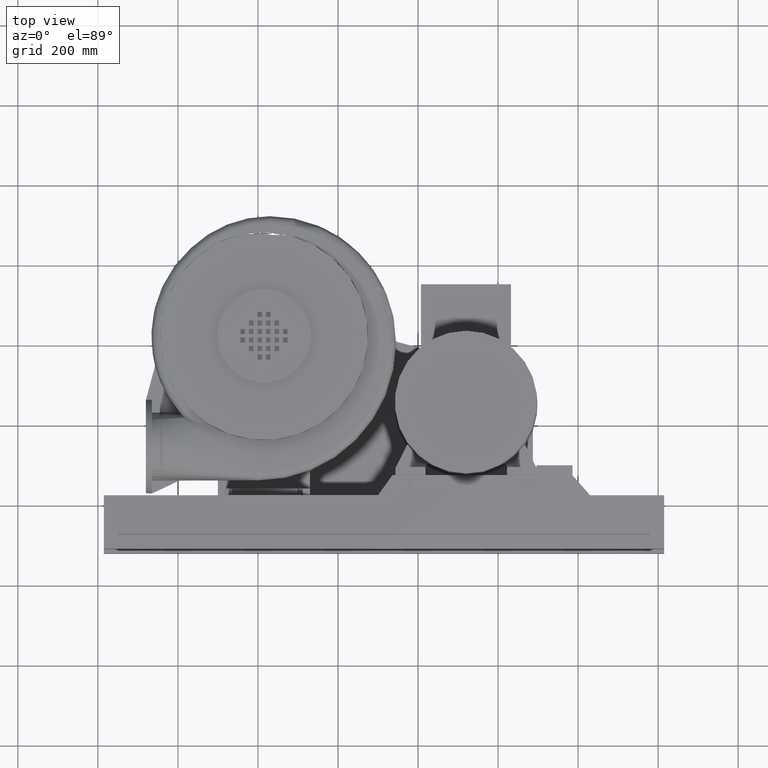
[diagram: clean part render]
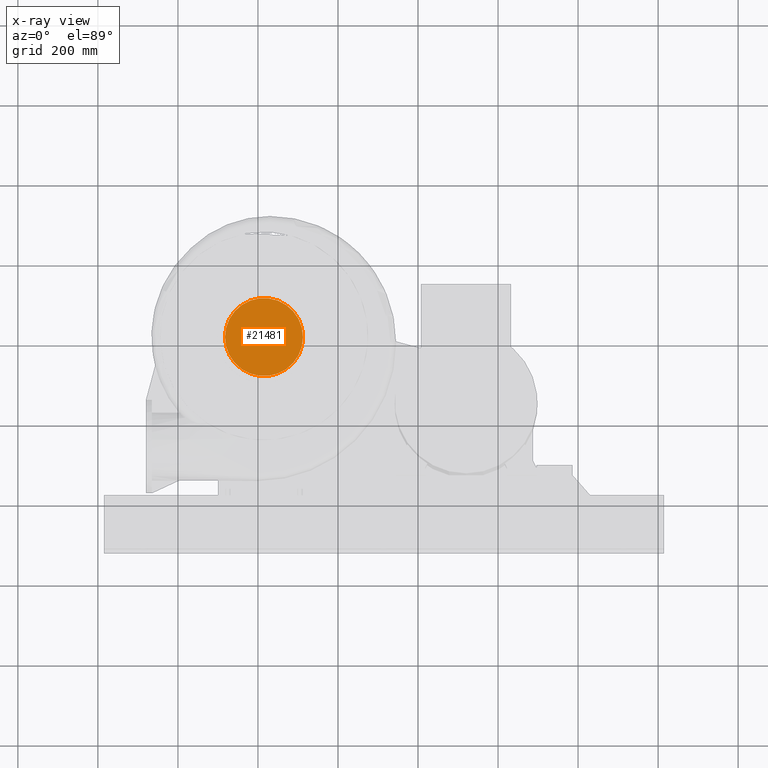
[diagram: x-ray — body ghosted, one internal face saturated and labeled with its STEP entity id]
A machine part, top view, then the same camera in x-ray: the body is ghosted and one INTERNAL B-rep face — a face not visible from any outside direction — is saturated and labeled: STEP entity #21481.
In plain terms, the highlighted planar face has unit normal (0, 0, 1).
Its self-contained STEP definition (entity closure, byte-faithful):
#21465=CARTESIAN_POINT('',(15.000000000000053,14.999999999999838,-77.500000000000028));
#21466=DIRECTION('',(0.0,0.0,1.0));
#21467=DIRECTION('',(1.0,0.0,0.0));
#21468=AXIS2_PLACEMENT_3D('',#21465,#21466,#21467);
#21469=PLANE('',#21468);
#21470=CARTESIAN_POINT('',(-82.499999999999943,14.999999999999849,-77.500000000000028));
#21471=VERTEX_POINT('',#21470);
#21472=CARTESIAN_POINT('',(15.000000000000053,14.999999999999838,-77.500000000000028));
#21473=DIRECTION('',(0.0,0.0,-1.0));
#21474=DIRECTION('',(1.0,0.0,0.0));
#21475=AXIS2_PLACEMENT_3D('',#21472,#21473,#21474);
#21476=CIRCLE('',#21475,97.5);
#21477=EDGE_CURVE('',#21471,#21471,#21476,.T.);
#21478=ORIENTED_EDGE('',*,*,#21477,.T.);
#21479=EDGE_LOOP('',(#21478));
#21480=FACE_OUTER_BOUND('',#21479,.T.);
#21481=ADVANCED_FACE('',(#21480),#21469,.F.);